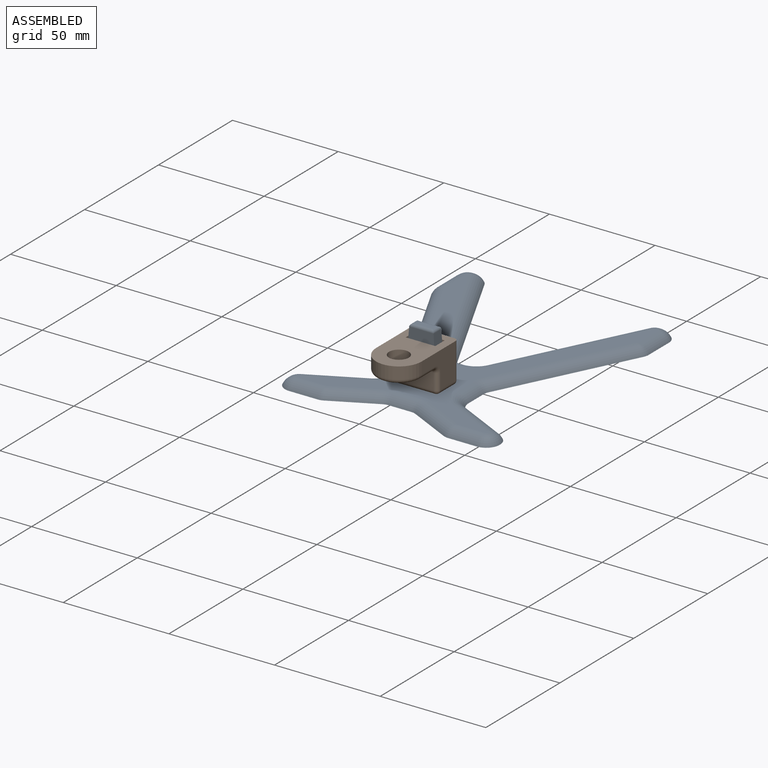
[diagram: assembled view]
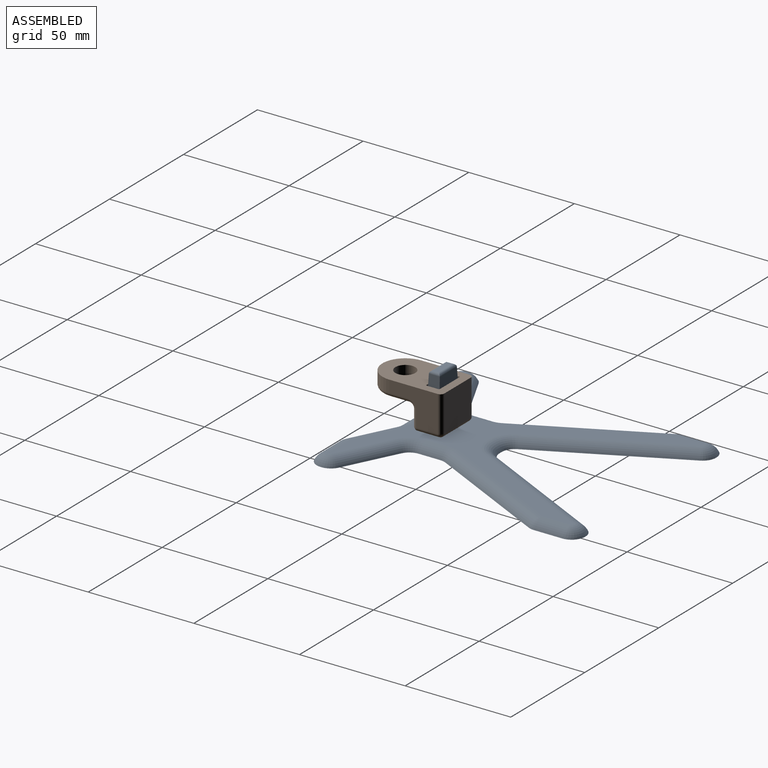
[diagram: assembled view, second angle]
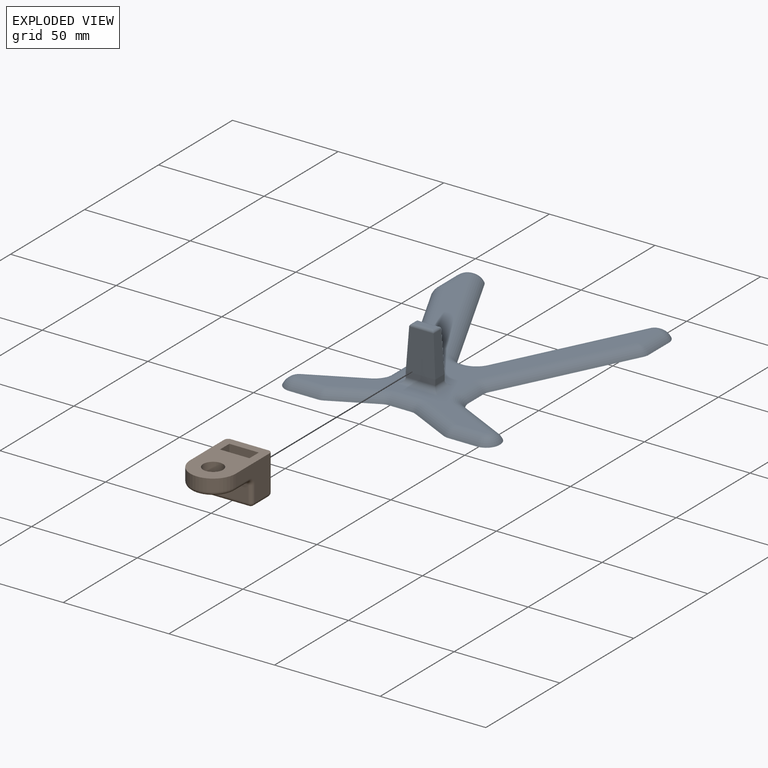
[diagram: exploded view]
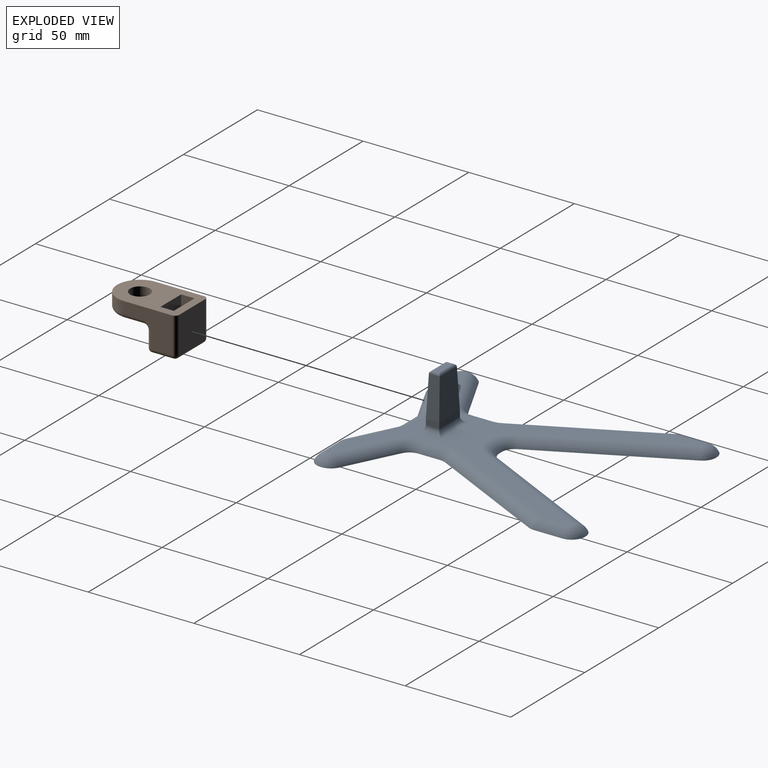
[diagram: exploded view, second angle]
ASSEMBLY  parts=2 mates=2
PART A: 59 faces, bbox 101.6x127x31.8 mm
  f0: plane 9.04x2.62mm, normal (0,0,1), area 23.7mm2, adj f55,f56,f57,f58
  f1: plane 19.13x6.35mm, normal (1,0,0.06), area 110.3mm2, adj f8,f13,f14,f55,f56,f58
  f2: plane 19.13x6.35mm, normal (-1,0,0.06), area 110.3mm2, adj f7,f13,f14,f55,f57,f58
  f3: plane 13.97x2.54mm, normal (0,1,0), area 35.5mm2, adj f7,f8,f9,f14
  f4: plane 13.97x2.54mm, normal (0,-1,0), area 35.5mm2, adj f7,f8,f12,f13
  f5: plane 115.36x89.96mm, normal (0,0,1), area 2231mm2, adj f9,f10,f11,f12,f15,f16,f17,f18
  f6: plane 127x101.6mm, normal (0,0,-1), area 5757.8mm2, adj f15,f16,f17,f18,f19,f20,f21,f22
  f7: plane 6.35x2.54mm, normal (-1,0,0), area 16.1mm2, adj f2,f3,f4,f10
  f8: plane 6.35x2.54mm, normal (1,0,0), area 16.1mm2, adj f1,f3,f4,f11
  f9: cylinder r=2.54mm len=19.05mm, axis (-1,0,0), area 63.1mm2, adj f3,f5,f10,f11
  f10: cylinder r=2.54mm len=11.43mm, axis (0,-1,0), area 32.7mm2, adj f5,f7,f9,f12
  f11: cylinder r=2.54mm len=11.43mm, axis (0,1,0), area 32.7mm2, adj f5,f8,f9,f12
  f12: cylinder r=2.54mm len=19.05mm, axis (1,0,0), area 63.1mm2, adj f4,f5,f10,f11
  f13: plane 19.09x13.97mm, normal (0,-1,0.03), area 244mm2, adj f1,f2,f4,f58
  f14: plane 19.09x13.97mm, normal (0,1,0.03), area 244mm2, adj f1,f2,f3,f55
  f15: torus R=12.17mm, axis (0,0,1), area 72.4mm2, adj f5,f6,f16,f17
  f16: cylinder r=6.35mm len=27.33mm, axis (0.89,0.45,0), area 203.5mm2, adj f5,f6,f15,f18
  f17: cylinder r=6.35mm len=10.25mm, axis (0,-1,0), area 75.5mm2, adj f5,f6,f15,f19
  f18: torus R=0.53mm, axis (0,0,-1), area 31.1mm2, adj f5,f6,f16,f20
  f19: torus R=12.17mm, axis (0,0,1), area 30.3mm2, adj f5,f6,f17,f21
  f20: cylinder r=6.35mm len=5.82mm, axis (0,-1,0), area 2.8mm2, adj f5,f6,f18,f22
  f21: cylinder r=6.35mm len=63.42mm, axis (-0.45,0.89,0), area 500.6mm2, adj f5,f6,f19,f23
  f22: torus R=0.53mm, axis (0,0,-1), area 44.1mm2, adj f5,f6,f20,f24
  f23: torus R=0.53mm, axis (0,0,-1), area 13mm2, adj f5,f6,f21,f25
  f24: cylinder r=6.35mm len=13.45mm, axis (1,0,0), area 99mm2, adj f5,f6,f22,f26
  f25: cylinder r=6.35mm len=13.45mm, axis (0,-1,0), area 99mm2, adj f5,f6,f23,f27
  f26: torus R=0.53mm, axis (0,0,-1), area 13mm2, adj f5,f6,f24,f28
  f27: torus R=0.53mm, axis (0,0,-1), area 44.1mm2, adj f5,f6,f25,f29
  f28: cylinder r=6.35mm len=22.78mm, axis (0.89,0.45,0), area 166.1mm2, adj f5,f6,f26,f30
  f29: cylinder r=6.35mm len=5.82mm, axis (1,0,0), area 2.8mm2, adj f5,f6,f27,f31
  f30: torus R=12.17mm, axis (0,0,1), area 30.3mm2, adj f5,f6,f28,f32
  f31: torus R=0.53mm, axis (0,0,-1), area 31.1mm2, adj f5,f6,f29,f33
  f32: cylinder r=6.35mm len=10.29mm, axis (-1,0,0), area 75.7mm2, adj f5,f6,f30,f34
  f33: cylinder r=6.35mm len=66.7mm, axis (-0.45,0.89,0), area 527.6mm2, adj f5,f6,f31,f35
  f34: torus R=12.17mm, axis (0,0,1), area 30.3mm2, adj f5,f6,f32,f36
  f35: torus R=12.17mm, axis (0,0,1), area 72.4mm2, adj f5,f6,f33,f37
  f36: cylinder r=6.35mm len=22.78mm, axis (-0.89,0.45,0), area 166.1mm2, adj f5,f6,f34,f38
  f37: cylinder r=6.35mm len=5.82mm, axis (1,0,0), area 9.8mm2, adj f5,f6,f35,f39
  f38: torus R=0.53mm, axis (0,0,-1), area 13mm2, adj f5,f6,f36,f40
  f39: torus R=12.17mm, axis (0,0,1), area 72.4mm2, adj f5,f6,f37,f41
  f40: cylinder r=6.35mm len=13.45mm, axis (1,0,0), area 99mm2, adj f5,f6,f38,f42
  f41: cylinder r=6.35mm len=66.7mm, axis (0.45,0.89,0), area 527.6mm2, adj f5,f6,f39,f43
  f42: torus R=0.53mm, axis (0,0,-1), area 44.1mm2, adj f5,f6,f40,f44
  f43: torus R=0.53mm, axis (0,0,-1), area 31.1mm2, adj f5,f6,f41,f45
  f44: cylinder r=6.35mm len=5.82mm, axis (0,-1,0), area 2.8mm2, adj f5,f6,f42,f46
  f45: cylinder r=6.35mm len=5.82mm, axis (1,0,0), area 2.8mm2, adj f5,f6,f43,f47
  f46: torus R=0.53mm, axis (0,0,-1), area 31.1mm2, adj f5,f6,f44,f48
  f47: torus R=0.53mm, axis (0,0,-1), area 44.1mm2, adj f5,f6,f45,f49
  f48: cylinder r=6.35mm len=27.33mm, axis (-0.89,0.45,0), area 203.5mm2, adj f5,f6,f46,f50
  f49: cylinder r=6.35mm len=13.45mm, axis (0,-1,0), area 99mm2, adj f5,f6,f47,f51
  f50: torus R=12.17mm, axis (0,0,1), area 72.4mm2, adj f5,f6,f48,f52
  f51: torus R=0.53mm, axis (0,0,-1), area 13mm2, adj f5,f6,f49,f53
  f52: cylinder r=6.35mm len=10.25mm, axis (0,-1,0), area 75.5mm2, adj f5,f6,f50,f54
  f53: cylinder r=6.35mm len=63.42mm, axis (0.45,0.89,0), area 500.6mm2, adj f5,f6,f51,f54
  f54: torus R=12.17mm, axis (0,0,1), area 30.3mm2, adj f5,f6,f52,f53
  f55: cylinder r=1.27mm len=11.58mm, axis (1,0,0), area 20.8mm2, adj f0,f1,f2,f14,f56,f57
  f56: cylinder r=1.27mm len=5.15mm, axis (0,1,0), area 8mm2, adj f0,f1,f55,f58
  f57: cylinder r=1.27mm len=5.15mm, axis (0,-1,0), area 8mm2, adj f0,f2,f55,f58
  f58: cylinder r=1.27mm len=11.58mm, axis (-1,0,0), area 20.8mm2, adj f0,f1,f2,f13,f56,f57
PART B: 30 faces, bbox 23.4x36.4x19.1 mm
  f0: plane 17.15x13.97mm, normal (0,1,0), area 239.5mm2, adj f1,f7,f8,f21
  f1: plane 17.15x6.35mm, normal (1,0,0), area 108.9mm2, adj f0,f2,f8,f20
  f2: plane 17.15x13.97mm, normal (0,-1,0), area 239.5mm2, adj f1,f7,f8,f15
  f3: plane 17.78x7.62mm, normal (0,-1,0), area 135.5mm2, adj f17,f21,f25,f29
  f4: plane 22.86x17.15mm, normal (1,0,0), area 249.9mm2, adj f8,f10,f12,f16,f17,f18,f23
  f5: plane 17.78x17.15mm, normal (0,1,0), area 304.8mm2, adj f8,f12,f14,f15
  f6: plane 22.86x17.15mm, normal (-1,0,0), area 249.9mm2, adj f8,f10,f14,f20,f26,f28,f29
  f7: plane 17.15x6.35mm, normal (-1,0,0), area 108.9mm2, adj f0,f2,f8,f16
  f8: plane 35.56x21.59mm, normal (0,0,-1), area 558.1mm2, adj f0,f1,f2,f4,f5,f6,f7,f9
  f9: cylinder r=4.7mm len=9.4mm, axis (0,0,-1), area 225mm2, adj f8,f11
  f10: cylinder r=10.79mm len=21.59mm, axis (0,0,-1), area 193.8mm2, adj f4,f6,f8,f24
  f11: plane 17.78x17.78mm, normal (0,0,1), area 212.8mm2, adj f9,f18,f24,f25,f26
  f12: cylinder r=1.91mm len=17.15mm, axis (0,0,1), area 51.3mm2, adj f4,f5,f8,f13
  f13: sphere r=1.91mm, area 5.7mm2, adj f12,f15,f16
  f14: cylinder r=1.91mm len=17.15mm, axis (0,0,-1), area 51.3mm2, adj f5,f6,f8,f19
  f15: cylinder r=1.91mm len=17.78mm, axis (1,0,0), area 99.2mm2, adj f2,f5,f13,f16,f19,f20
  f16: cylinder r=1.91mm len=10.16mm, axis (0,1,0), area 53.5mm2, adj f4,f7,f13,f15,f21,f22
  f17: cylinder r=1.91mm len=7.62mm, axis (0,0,-1), area 22.8mm2, adj f3,f4,f22,f23
  f18: cylinder r=1.91mm len=8.89mm, axis (0,1,0), area 26.6mm2, adj f4,f11,f23,f24
  f19: sphere r=1.91mm, area 5.7mm2, adj f14,f15,f20
  f20: cylinder r=1.91mm len=10.16mm, axis (0,-1,0), area 53.5mm2, adj f1,f6,f15,f19,f21,f27
  f21: cylinder r=1.91mm len=17.78mm, axis (1,0,0), area 99.2mm2, adj f0,f3,f16,f20,f22,f27
  f22: sphere r=1.91mm, area 5.7mm2, adj f16,f17,f21
  f23: torus R=3.81mm, axis (-1,0,0), area 12.2mm2, adj f4,f17,f18,f25
  f24: torus R=8.89mm, axis (0,0,-1), area 95mm2, adj f10,f11,f18,f26
  f25: cylinder r=1.91mm len=17.78mm, axis (-1,0,0), area 53.2mm2, adj f3,f11,f23,f28
  f26: cylinder r=1.91mm len=8.89mm, axis (0,-1,0), area 26.6mm2, adj f6,f11,f24,f28
  f27: sphere r=1.91mm, area 5.7mm2, adj f20,f21,f29
  f28: torus R=3.81mm, axis (-1,0,0), area 12.2mm2, adj f6,f25,f26,f29
  f29: cylinder r=1.91mm len=7.62mm, axis (0,0,1), area 22.8mm2, adj f3,f6,f27,f28
PLACE A t=(7.92,18.29,5.98)mm fixed
PLACE B rot(axis=(0,1,0),180deg) t=(7.92,-16.63,29.26)mm
MATE planar B.f0 <-> A.f4  axis (0,1,0) through (7.92,-19.81,20.69)mm
MATE planar B.f1 <-> A.f8  axis (-1,0,0) through (14.9,-16.63,20.69)mm
